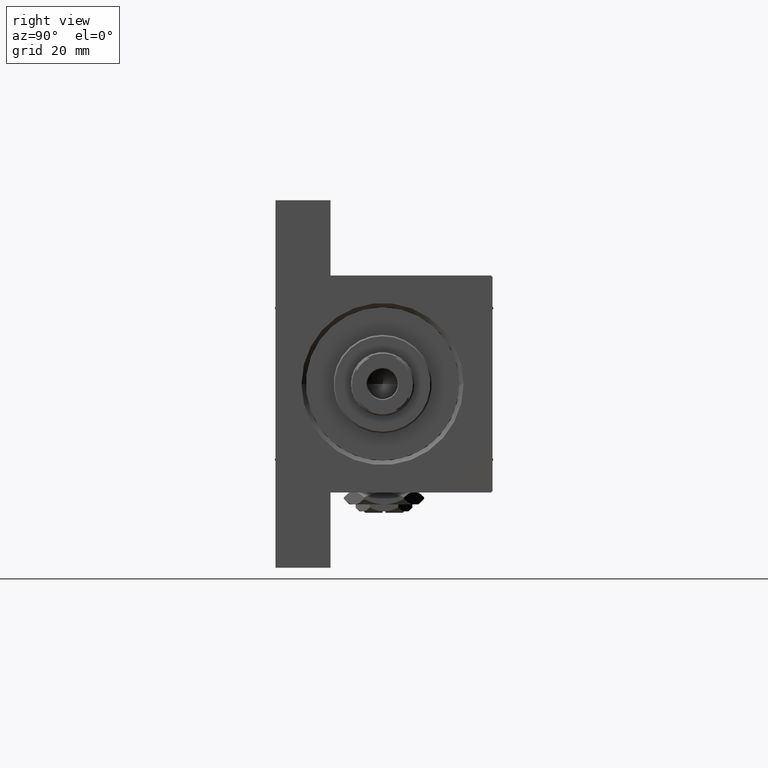
[diagram: clean part render]
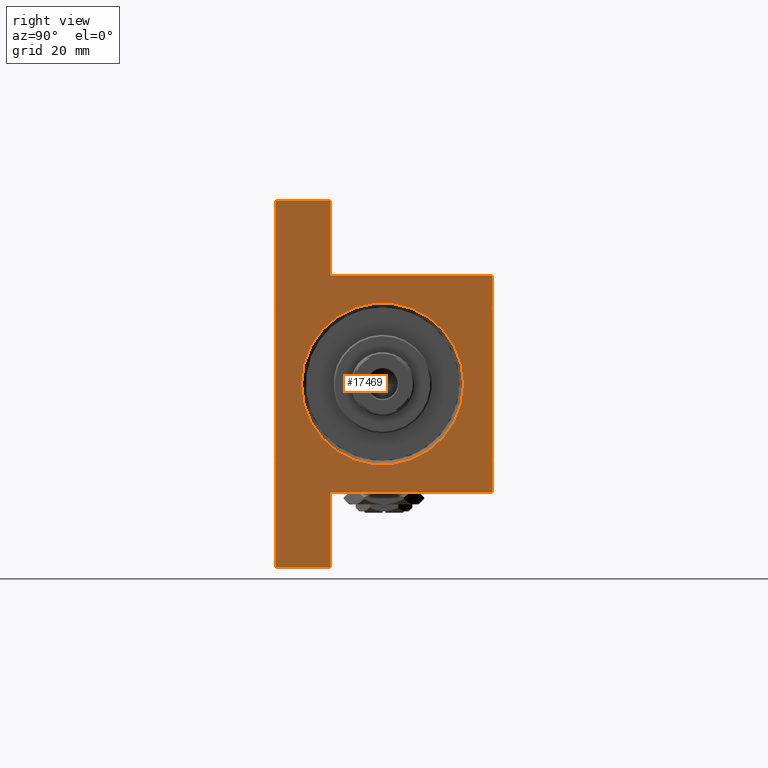
[diagram: same view with one face highlighted and labeled with its STEP entity id]
A machine part, right view. The second image highlights one B-rep face of the part: STEP entity #17469.
In plain terms, the highlighted planar face has unit normal (-1, 0, 0).
Its self-contained STEP definition (entity closure, byte-faithful):
#310 = AXIS2_PLACEMENT_3D ( 'NONE', #45662, #22512, #38182 ) ;
#403 = ORIENTED_EDGE ( 'NONE', *, *, #28566, .F. ) ;
#443 = CARTESIAN_POINT ( 'NONE',  ( 164.0000000000000000, 0.000000000000000000, -0.5000000000000004441 ) ) ;
#1761 = EDGE_CURVE ( 'NONE', #42980, #14305, #8240, .T. ) ;
#1813 = VERTEX_POINT ( 'NONE', #15722 ) ;
#1912 = VECTOR ( 'NONE', #23137, 1000.000000000000000 ) ;
#1944 = EDGE_CURVE ( 'NONE', #37759, #1813, #17424, .T. ) ;
#1976 = VERTEX_POINT ( 'NONE', #24894 ) ;
#2585 = ORIENTED_EDGE ( 'NONE', *, *, #33554, .T. ) ;
#3233 = LINE ( 'NONE', #48814, #42008 ) ;
#3263 = VERTEX_POINT ( 'NONE', #8631 ) ;
#4178 = DIRECTION ( 'NONE',  ( -1.000000000000000000, -0.000000000000000000, 0.000000000000000000 ) ) ;
#4858 = DIRECTION ( 'NONE',  ( 0.000000000000000000, 0.000000000000000000, 1.000000000000000000 ) ) ;
#4925 = DIRECTION ( 'NONE',  ( 0.000000000000000000, 0.000000000000000000, 1.000000000000000000 ) ) ;
#5127 = CARTESIAN_POINT ( 'NONE',  ( 163.9999999999999716, -63.50000000000002842, -18.50000000000000000 ) ) ;
#6057 = CARTESIAN_POINT ( 'NONE',  ( 163.9999999999999716, -63.50000000000002842, -18.50000000000000000 ) ) ;
#6379 = CARTESIAN_POINT ( 'NONE',  ( 164.0000000000000000, -37.50000000000000711, -18.50000000000000355 ) ) ;
#6385 = EDGE_CURVE ( 'NONE', #3263, #44185, #12824, .T. ) ;
#7463 = VECTOR ( 'NONE', #22911, 1000.000000000000114 ) ;
#7488 = CARTESIAN_POINT ( 'NONE',  ( 164.0000000000000000, -37.00000000000000000, 37.49999999999997868 ) ) ;
#7493 = VECTOR ( 'NONE', #16198, 1000.000000000000000 ) ;
#7719 = LINE ( 'NONE', #11945, #47201 ) ;
#7956 = DIRECTION ( 'NONE',  ( 0.000000000000000000, 0.000000000000000000, -1.000000000000000000 ) ) ;
#8240 = LINE ( 'NONE', #10998, #23015 ) ;
#8631 = CARTESIAN_POINT ( 'NONE',  ( 164.0000000000000000, 3.429011037612588881E-15, 27.49999999999999645 ) ) ;
#9214 = ORIENTED_EDGE ( 'NONE', *, *, #47533, .F. ) ;
#9939 = DIRECTION ( 'NONE',  ( -0.000000000000000000, -0.7071067811865474617, -0.7071067811865474617 ) ) ;
#10244 = EDGE_CURVE ( 'NONE', #44185, #3263, #14516, .T. ) ;
#10998 = CARTESIAN_POINT ( 'NONE',  ( 164.0000000000000000, 37.50000000000000000, 37.49999999999999289 ) ) ;
#11008 = VERTEX_POINT ( 'NONE', #25940 ) ;
#11042 = ORIENTED_EDGE ( 'NONE', *, *, #35360, .T. ) ;
#11538 = VERTEX_POINT ( 'NONE', #22028 ) ;
#11945 = CARTESIAN_POINT ( 'NONE',  ( 163.9999999999999716, -63.50000000000002842, -18.50000000000000000 ) ) ;
#12824 = CIRCLE ( 'NONE', #35122, 27.99999999999999645 ) ;
#14305 = VERTEX_POINT ( 'NONE', #33990 ) ;
#14516 = CIRCLE ( 'NONE', #40729, 27.99999999999999645 ) ;
#14664 = CARTESIAN_POINT ( 'NONE',  ( 164.0000000000000000, 37.50000000000000000, -37.50000000000000000 ) ) ;
#15118 = EDGE_CURVE ( 'NONE', #1813, #38626, #45804, .T. ) ;
#15722 = CARTESIAN_POINT ( 'NONE',  ( 164.0000000000000000, -37.50000000000000000, 36.99999999999997868 ) ) ;
#16178 = EDGE_CURVE ( 'NONE', #42980, #44629, #30386, .T. ) ;
#16185 = EDGE_CURVE ( 'NONE', #32441, #11538, #7719, .T. ) ;
#16198 = DIRECTION ( 'NONE',  ( -1.067522139062649685E-15, -1.000000000000000000, 0.000000000000000000 ) ) ;
#17424 = LINE ( 'NONE', #48529, #18255 ) ;
#17469 = ADVANCED_FACE ( 'NONE', ( #45172, #49141 ), #26245, .F. ) ;
#18255 = VECTOR ( 'NONE', #9939, 1000.000000000000114 ) ;
#20066 = ORIENTED_EDGE ( 'NONE', *, *, #1944, .T. ) ;
#20333 = DIRECTION ( 'NONE',  ( -0.000000000000000000, -1.000000000000000000, -0.000000000000000000 ) ) ;
#20632 = EDGE_CURVE ( 'NONE', #38626, #32441, #39252, .T. ) ;
#21920 = CARTESIAN_POINT ( 'NONE',  ( 164.0000000000000000, 37.50000000000000000, 36.99999999999999289 ) ) ;
#22028 = CARTESIAN_POINT ( 'NONE',  ( 163.9999999999999716, -63.50000000000002842, -37.50000000000000000 ) ) ;
#22512 = DIRECTION ( 'NONE',  ( -1.000000000000000000, -0.000000000000000000, 0.000000000000000000 ) ) ;
#22911 = DIRECTION ( 'NONE',  ( 0.000000000000000000, -0.7071067811865474617, 0.7071067811865474617 ) ) ;
#23015 = VECTOR ( 'NONE', #38371, 1000.000000000000000 ) ;
#23137 = DIRECTION ( 'NONE',  ( 0.000000000000000000, -9.251858538542972814E-17, -1.000000000000000000 ) ) ;
#24894 = CARTESIAN_POINT ( 'NONE',  ( 164.0000000000000000, 63.50000000000000000, -18.50000000000000000 ) ) ;
#25853 = LINE ( 'NONE', #36561, #31301 ) ;
#25873 = ORIENTED_EDGE ( 'NONE', *, *, #16178, .T. ) ;
#25922 = CARTESIAN_POINT ( 'NONE',  ( 164.0000000000000000, 37.00000000000000000, 37.49999999999999289 ) ) ;
#25940 = CARTESIAN_POINT ( 'NONE',  ( 164.0000000000000000, 63.50000000000000000, -37.50000000000000000 ) ) ;
#26245 = PLANE ( 'NONE',  #310 ) ;
#28566 = EDGE_CURVE ( 'NONE', #11008, #11538, #45535, .T. ) ;
#29606 = DIRECTION ( 'NONE',  ( 0.000000000000000000, -1.000000000000000000, 0.000000000000000000 ) ) ;
#30061 = ORIENTED_EDGE ( 'NONE', *, *, #10244, .T. ) ;
#30294 = EDGE_LOOP ( 'NONE', ( #46459, #25873, #2585, #20066, #47569, #33926, #45868, #403, #9214, #11042 ) ) ;
#30386 = LINE ( 'NONE', #37856, #7463 ) ;
#31301 = VECTOR ( 'NONE', #40542, 1000.000000000000000 ) ;
#32441 = VERTEX_POINT ( 'NONE', #6057 ) ;
#33554 = EDGE_CURVE ( 'NONE', #44629, #37759, #25853, .T. ) ;
#33827 = CARTESIAN_POINT ( 'NONE',  ( 164.0000000000000000, 0.000000000000000000, -28.49999999999999645 ) ) ;
#33871 = CARTESIAN_POINT ( 'NONE',  ( 164.0000000000000000, -37.50000000000000000, 37.49999999999997868 ) ) ;
#33926 = ORIENTED_EDGE ( 'NONE', *, *, #20632, .T. ) ;
#33990 = CARTESIAN_POINT ( 'NONE',  ( 163.9999999999999716, 37.49999999999997868, -18.50000000000000000 ) ) ;
#35122 = AXIS2_PLACEMENT_3D ( 'NONE', #38985, #45714, #4858 ) ;
#35360 = EDGE_CURVE ( 'NONE', #1976, #14305, #45839, .T. ) ;
#35519 = EDGE_LOOP ( 'NONE', ( #30061, #36950 ) ) ;
#36561 = CARTESIAN_POINT ( 'NONE',  ( 164.0000000000000000, 37.50000000000000000, 37.49999999999999289 ) ) ;
#36950 = ORIENTED_EDGE ( 'NONE', *, *, #6385, .T. ) ;
#37759 = VERTEX_POINT ( 'NONE', #7488 ) ;
#37856 = CARTESIAN_POINT ( 'NONE',  ( 164.0000000000000000, 37.00000000000000000, 37.49999999999999289 ) ) ;
#38182 = DIRECTION ( 'NONE',  ( 0.000000000000000000, 0.000000000000000000, 1.000000000000000000 ) ) ;
#38371 = DIRECTION ( 'NONE',  ( 0.000000000000000000, 0.000000000000000000, -1.000000000000000000 ) ) ;
#38626 = VERTEX_POINT ( 'NONE', #6379 ) ;
#38985 = CARTESIAN_POINT ( 'NONE',  ( 164.0000000000000000, 0.000000000000000000, -0.5000000000000004441 ) ) ;
#39094 = DIRECTION ( 'NONE',  ( 0.000000000000000000, 0.000000000000000000, -1.000000000000000000 ) ) ;
#39252 = LINE ( 'NONE', #5127, #43399 ) ;
#40542 = DIRECTION ( 'NONE',  ( 0.000000000000000000, -1.000000000000000000, -1.850371707708594316E-16 ) ) ;
#40729 = AXIS2_PLACEMENT_3D ( 'NONE', #443, #4178, #4925 ) ;
#42008 = VECTOR ( 'NONE', #39094, 1000.000000000000000 ) ;
#42593 = CARTESIAN_POINT ( 'NONE',  ( 164.0000000000000000, 63.50000000000000000, -18.50000000000000000 ) ) ;
#42980 = VERTEX_POINT ( 'NONE', #21920 ) ;
#43054 = VECTOR ( 'NONE', #29606, 1000.000000000000000 ) ;
#43399 = VECTOR ( 'NONE', #20333, 1000.000000000000000 ) ;
#44185 = VERTEX_POINT ( 'NONE', #33827 ) ;
#44629 = VERTEX_POINT ( 'NONE', #25922 ) ;
#45172 = FACE_BOUND ( 'NONE', #35519, .T. ) ;
#45535 = LINE ( 'NONE', #14664, #43054 ) ;
#45662 = CARTESIAN_POINT ( 'NONE',  ( 164.0000000000000000, 0.000000000000000000, 0.000000000000000000 ) ) ;
#45714 = DIRECTION ( 'NONE',  ( -1.000000000000000000, -0.000000000000000000, 0.000000000000000000 ) ) ;
#45804 = LINE ( 'NONE', #33871, #1912 ) ;
#45839 = LINE ( 'NONE', #42593, #7493 ) ;
#45868 = ORIENTED_EDGE ( 'NONE', *, *, #16185, .T. ) ;
#46459 = ORIENTED_EDGE ( 'NONE', *, *, #1761, .F. ) ;
#47201 = VECTOR ( 'NONE', #7956, 1000.000000000000000 ) ;
#47533 = EDGE_CURVE ( 'NONE', #1976, #11008, #3233, .T. ) ;
#47569 = ORIENTED_EDGE ( 'NONE', *, *, #15118, .T. ) ;
#48529 = CARTESIAN_POINT ( 'NONE',  ( 164.0000000000000000, -37.50000000000000000, 36.99999999999997868 ) ) ;
#48814 = CARTESIAN_POINT ( 'NONE',  ( 164.0000000000000000, 63.50000000000000000, -18.50000000000000000 ) ) ;
#49141 = FACE_OUTER_BOUND ( 'NONE', #30294, .T. ) ;